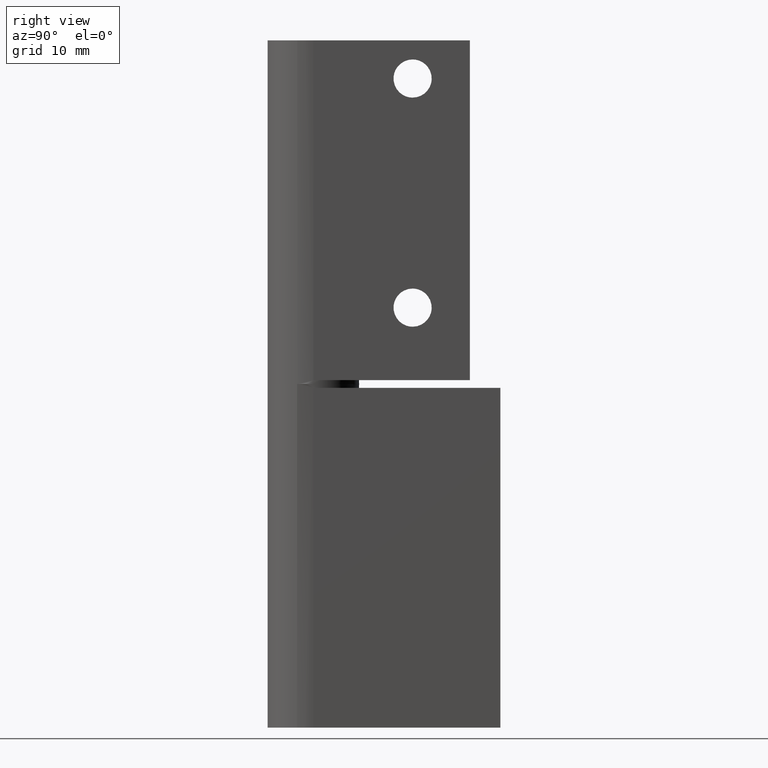
[diagram: clean part render]
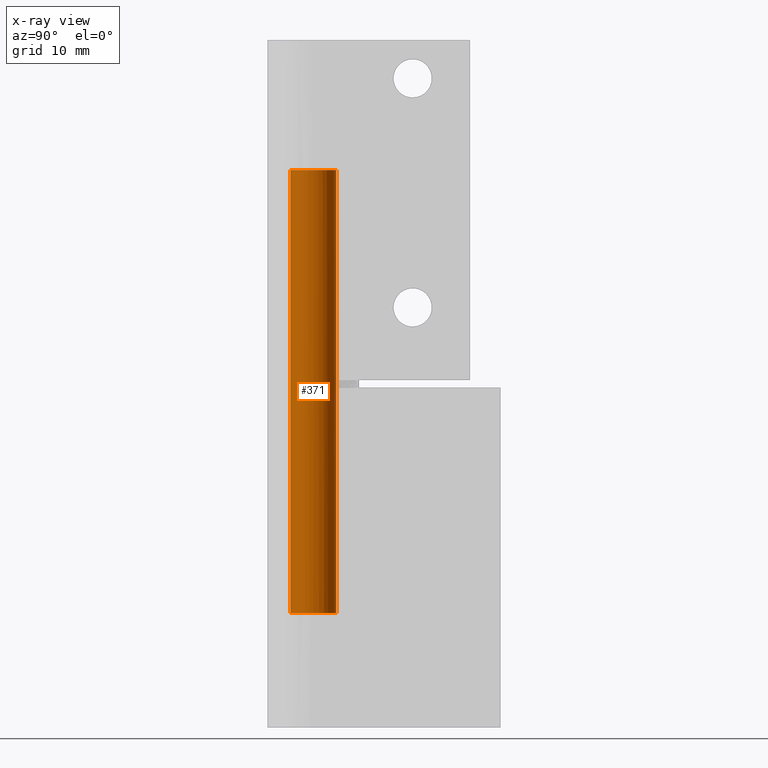
[diagram: x-ray — body ghosted, one internal face saturated and labeled with its STEP entity id]
A machine part, right view, then the same camera in x-ray: the body is ghosted and one INTERNAL B-rep face — a face not visible from any outside direction — is saturated and labeled: STEP entity #371.
In plain terms, the highlighted face is a freeform B-spline surface patch.
Its self-contained STEP definition (entity closure, byte-faithful):
#66=CARTESIAN_POINT('',(1.212646296362724,-2.743991428582365,73.000002137349469));
#67=VERTEX_POINT('',#66);
#68=CARTESIAN_POINT('',(-0.372384061675230,-2.976798634541868,73.000002137385394));
#69=VERTEX_POINT('',#68);
#70=CARTESIAN_POINT('',(1.212646296362725,-2.743991428582366,73.000002137349469));
#71=CARTESIAN_POINT('',(0.633346852194829,-3.0,73.000002137385394));
#72=CARTESIAN_POINT('',(-9.947598E-014,-3.0,73.000002137385408));
#73=CARTESIAN_POINT('',(-0.186914838685168,-3.000000000000000,73.000002137385408));
#74=CARTESIAN_POINT('',(-0.372384061675230,-2.976798634541868,73.000002137385394));
#82=(BOUNDED_CURVE()B_SPLINE_CURVE(2,(#70,#71,#72,#73,#74),.UNSPECIFIED.,.F.,.U.)B_SPLINE_CURVE_WITH_KNOTS((3,2,3),(0.181361578416155,0.250000000000000,0.271473935251943),.UNSPECIFIED.)CURVE()GEOMETRIC_REPRESENTATION_ITEM()RATIONAL_B_SPLINE_CURVE((0.883326595705633,0.919585087072132,1.0,0.974841719933867,0.954005418085258))REPRESENTATION_ITEM(''));
#83=EDGE_CURVE('',#67,#69,#82,.T.);
#126=CARTESIAN_POINT('',(0.026179606690811,2.999885769190746,73.000002137385508));
#127=VERTEX_POINT('',#126);
#184=CARTESIAN_POINT('',(2.999999999999901,0.0,73.000002137385408));
#185=VERTEX_POINT('',#184);
#186=CARTESIAN_POINT('',(2.999999999999901,0.0,73.000002137385408));
#187=CARTESIAN_POINT('',(2.999999999999901,-1.954110007175912,73.000002137385408));
#188=CARTESIAN_POINT('',(1.212646296362724,-2.743991428582365,73.000002137349483));
#196=(BOUNDED_CURVE()B_SPLINE_CURVE(2,(#186,#187,#188),.UNSPECIFIED.,.F.,.U.)B_SPLINE_CURVE_WITH_KNOTS((3,3),(0.0,0.181361578416155),.UNSPECIFIED.)CURVE()GEOMETRIC_REPRESENTATION_ITEM()RATIONAL_B_SPLINE_CURVE((1.0,0.787521694114416,0.883326595705633))REPRESENTATION_ITEM(''));
#197=EDGE_CURVE('',#185,#67,#196,.T.);
#199=CARTESIAN_POINT('',(0.026179606690811,2.999885769190746,73.000002137385508));
#200=CARTESIAN_POINT('',(2.999999999999902,2.973933631008525,73.000002137385422));
#201=CARTESIAN_POINT('',(2.999999999999901,0.0,73.000002137385408));
#209=(BOUNDED_CURVE()B_SPLINE_CURVE(2,(#199,#200,#201),.UNSPECIFIED.,.F.,.U.)B_SPLINE_CURVE_WITH_KNOTS((3,3),(0.751539894380971,1.0),.UNSPECIFIED.)CURVE()GEOMETRIC_REPRESENTATION_ITEM()RATIONAL_B_SPLINE_CURVE((0.996414027993986,0.708910879674049,1.0))REPRESENTATION_ITEM(''));
#210=EDGE_CURVE('',#127,#185,#209,.T.);
#265=CARTESIAN_POINT('',(-0.372384006317165,-2.976798641466911,15.000002137385501));
#266=VERTEX_POINT('',#265);
#280=CARTESIAN_POINT('',(-0.372384061675230,-2.976798634541868,73.000002137385394));
#281=CARTESIAN_POINT('',(-0.372384006317165,-2.976798641466911,15.000002137385501));
#282=QUASI_UNIFORM_CURVE('',1,(#280,#281),.UNSPECIFIED.,.F.,.U.);
#283=EDGE_CURVE('',#69,#266,#282,.T.);
#287=CARTESIAN_POINT('',(0.026179606853401,2.999885769189386,15.000002137385501));
#288=VERTEX_POINT('',#287);
#289=CARTESIAN_POINT('',(0.026179606690811,2.999885769190746,73.000002137385508));
#290=CARTESIAN_POINT('',(0.026179606853401,2.999885769189386,15.000002137385501));
#291=QUASI_UNIFORM_CURVE('',1,(#289,#290),.UNSPECIFIED.,.F.,.U.);
#292=EDGE_CURVE('',#127,#288,#291,.T.);
#312=CARTESIAN_POINT('',(0.026179606495022,2.999885769192513,74.450002137385425));
#313=CARTESIAN_POINT('',(3.026065375687535,2.973706162697392,74.450002137385439));
#314=CARTESIAN_POINT('',(2.999885769192414,-0.026179606495122,74.450002137385425));
#315=CARTESIAN_POINT('',(2.973706162697292,-3.026065375687634,74.450002137385439));
#316=CARTESIAN_POINT('',(-0.026179606495221,-2.999885769192513,74.450002137385425));
#317=CARTESIAN_POINT('',(-0.199950476874620,-2.998369293780826,74.450002137385425));
#318=CARTESIAN_POINT('',(-0.372384006239587,-2.976798641476615,74.450002137385425));
#319=CARTESIAN_POINT('',(0.026179606495022,2.999885769192513,13.513752137385501));
#320=CARTESIAN_POINT('',(3.026065375687535,2.973706162697392,13.513752137385502));
#321=CARTESIAN_POINT('',(2.999885769192414,-0.026179606495122,13.513752137385501));
#322=CARTESIAN_POINT('',(2.973706162697292,-3.026065375687634,13.513752137385502));
#323=CARTESIAN_POINT('',(-0.026179606495221,-2.999885769192513,13.513752137385501));
#324=CARTESIAN_POINT('',(-0.199950476874620,-2.998369293780826,13.513752137385501));
#325=CARTESIAN_POINT('',(-0.372384006239587,-2.976798641476615,13.513752137385508));
#333=(BOUNDED_SURFACE()B_SPLINE_SURFACE(2,1,((#312,#319),(#313,#320),(#314,#321),(#315,#322),(#316,#323),(#317,#324),(#318,#325)),.UNSPECIFIED.,.F.,.F.,.U.)B_SPLINE_SURFACE_WITH_KNOTS((3,2,2,3),(2,2),(0.0,4.970562748477140,9.941125496954280,10.338770516832451),(0.0,60.936249999999930),.UNSPECIFIED.)GEOMETRIC_REPRESENTATION_ITEM()RATIONAL_B_SPLINE_SURFACE(((1.0,1.0),(0.707106781186548,0.707106781186548),(1.0,1.0),(0.707106781186548,0.707106781186548),(1.0,1.0),(0.976568542494924,0.976568542494924),(0.956886118190660,0.956886118190660)))REPRESENTATION_ITEM('')SURFACE());
#334=CARTESIAN_POINT('',(2.999999999999901,0.0,15.000002137385501));
#335=VERTEX_POINT('',#334);
#336=CARTESIAN_POINT('',(-0.372384006317165,-2.976798641466911,15.000002137385497));
#337=CARTESIAN_POINT('',(-0.186914782679068,-3.000000000000000,15.000002137385497));
#338=CARTESIAN_POINT('',(-9.947598E-014,-3.0,15.000002137385501));
#339=CARTESIAN_POINT('',(2.999999999999901,-3.0,15.000002137385509));
#340=CARTESIAN_POINT('',(2.999999999999901,0.0,15.000002137385501));
#348=(BOUNDED_CURVE()B_SPLINE_CURVE(2,(#336,#337,#338,#339,#340),.UNSPECIFIED.,.F.,.U.)B_SPLINE_CURVE_WITH_KNOTS((3,2,3),(0.228526071020509,0.250000000000000,0.500000000000000),.UNSPECIFIED.)CURVE()GEOMETRIC_REPRESENTATION_ITEM()RATIONAL_B_SPLINE_CURVE((0.954005430257661,0.974841727282501,1.0,0.707106781186548,1.0))REPRESENTATION_ITEM(''));
#349=EDGE_CURVE('',#266,#335,#348,.T.);
#350=ORIENTED_EDGE('',*,*,#349,.T.);
#351=CARTESIAN_POINT('',(2.999999999999901,0.0,15.000002137385501));
#352=CARTESIAN_POINT('',(2.999999999999902,2.973933631074351,15.000002137385501));
#353=CARTESIAN_POINT('',(0.026179606853401,2.999885769189386,15.000002137385501));
#361=(BOUNDED_CURVE()B_SPLINE_CURVE(2,(#351,#352,#353),.UNSPECIFIED.,.F.,.U.)B_SPLINE_CURVE_WITH_KNOTS((3,3),(0.500000000000000,0.748460105622927),.UNSPECIFIED.)CURVE()GEOMETRIC_REPRESENTATION_ITEM()RATIONAL_B_SPLINE_CURVE((1.0,0.708910879669482,0.996414028003008))REPRESENTATION_ITEM(''));
#362=EDGE_CURVE('',#335,#288,#361,.T.);
#363=ORIENTED_EDGE('',*,*,#362,.T.);
#364=ORIENTED_EDGE('',*,*,#292,.F.);
#365=ORIENTED_EDGE('',*,*,#210,.T.);
#366=ORIENTED_EDGE('',*,*,#197,.T.);
#367=ORIENTED_EDGE('',*,*,#83,.T.);
#368=ORIENTED_EDGE('',*,*,#283,.T.);
#369=EDGE_LOOP('',(#350,#363,#364,#365,#366,#367,#368));
#370=FACE_OUTER_BOUND('',#369,.T.);
#371=ADVANCED_FACE('',(#370),#333,.T.);